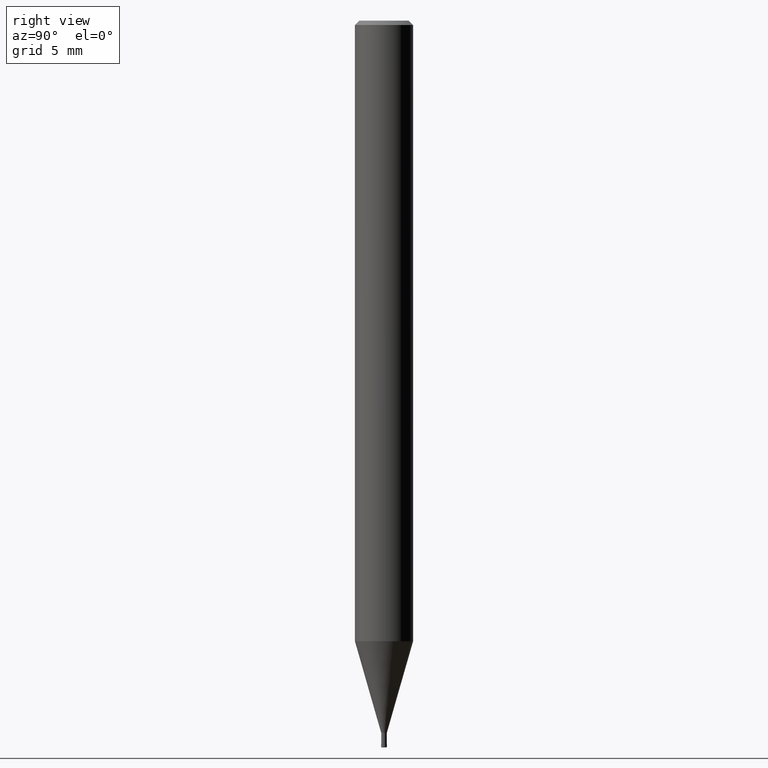
[diagram: clean part render]
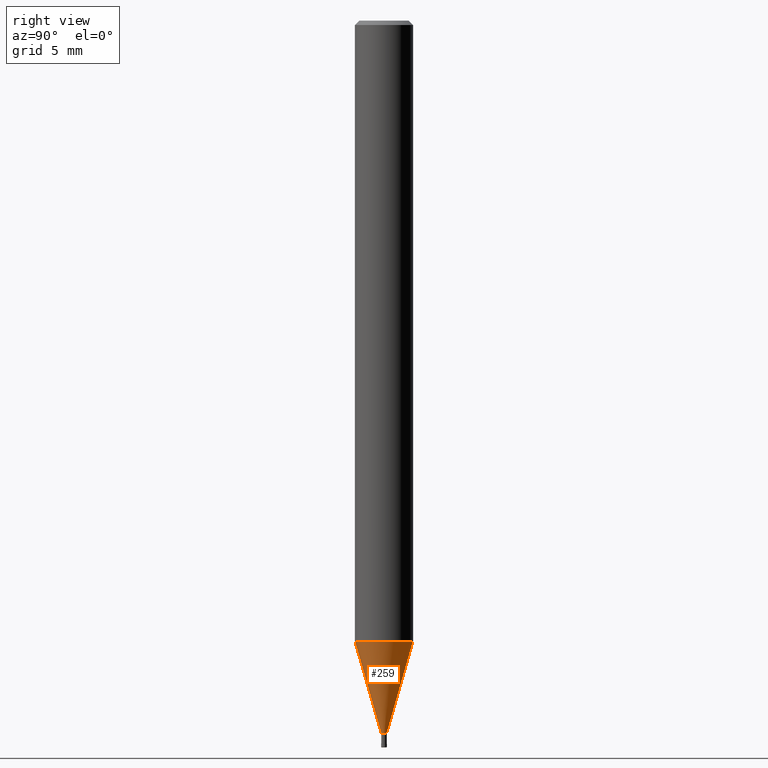
[diagram: same view with one face highlighted and labeled with its STEP entity id]
A machine part, right view. The second image highlights one B-rep face of the part: STEP entity #259.
In plain terms, the highlighted conical surface has half-angle 15.999 deg.
Its self-contained STEP definition (entity closure, byte-faithful):
#185=EDGE_CURVE('',#321,#209,#429,.T.);
#199=VERTEX_POINT('',#443);
#209=VERTEX_POINT('',#454);
#225=EDGE_CURVE('',#199,#337,#472,.T.);
#235=EDGE_CURVE('',#199,#209,#483,.T.);
#259=ADVANCED_FACE('',(#510),#511,.T.);
#267=EDGE_CURVE('',#337,#321,#519,.T.);
#321=VERTEX_POINT('',#581);
#337=VERTEX_POINT('',#597);
#429=LINE('',#699,#700);
#443=CARTESIAN_POINT('',(0.0,1.99995,-42.686));
#454=CARTESIAN_POINT('',(2.44915147732706E-016,-1.99995,-42.686));
#472=LINE('',#756,#757);
#483=CIRCLE('',#771,1.99995);
#510=FACE_OUTER_BOUND('',#805,.T.);
#511=CONICAL_SURFACE('',#806,1.0962,0.279231732547063);
#519=CIRCLE('',#819,0.19245);
#581=CARTESIAN_POINT('',(2.35675492793117E-017,-0.19245,-48.99));
#597=CARTESIAN_POINT('',(0.0,0.19245,-48.99));
#699=CARTESIAN_POINT('',(1.34241348506009E-016,-1.0962,-45.838));
#700=VECTOR('',#1036,1.0);
#756=CARTESIAN_POINT('',(-1.34241348506009E-016,1.0962,-45.838));
#757=VECTOR('',#1079,1.0);
#771=AXIS2_PLACEMENT_3D('',#1092,#1093,#1094);
#805=EDGE_LOOP('',(#1131,#1132,#1133,#1134));
#806=AXIS2_PLACEMENT_3D('',#1135,#1136,#1137);
#819=AXIS2_PLACEMENT_3D('',#1140,#1141,#1142);
#1036=DIRECTION('',(3.375225981805E-017,-0.275617219465657,0.961267469715906));
#1079=DIRECTION('',(3.375225981805E-017,-0.275617219465657,-0.961267469715906));
#1092=CARTESIAN_POINT('',(0.0,0.0,-42.686));
#1093=DIRECTION('',(0.0,0.0,-1.0));
#1094=DIRECTION('',(0.0,1.0,0.0));
#1131=ORIENTED_EDGE('',*,*,#225,.F.);
#1132=ORIENTED_EDGE('',*,*,#235,.T.);
#1133=ORIENTED_EDGE('',*,*,#185,.F.);
#1134=ORIENTED_EDGE('',*,*,#267,.F.);
#1135=CARTESIAN_POINT('',(0.0,0.0,-45.838));
#1136=DIRECTION('',(-0.0,-0.0,1.0));
#1137=DIRECTION('',(0.0,1.0,0.0));
#1140=CARTESIAN_POINT('',(0.0,0.0,-48.99));
#1141=DIRECTION('',(0.0,0.0,-1.0));
#1142=DIRECTION('',(0.0,1.0,0.0));